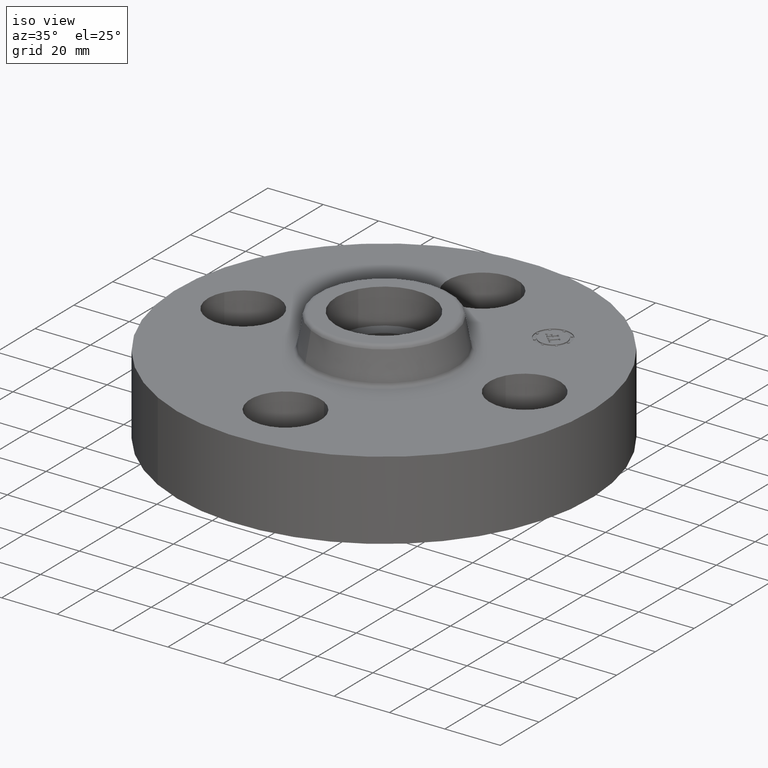
[diagram: clean part render]
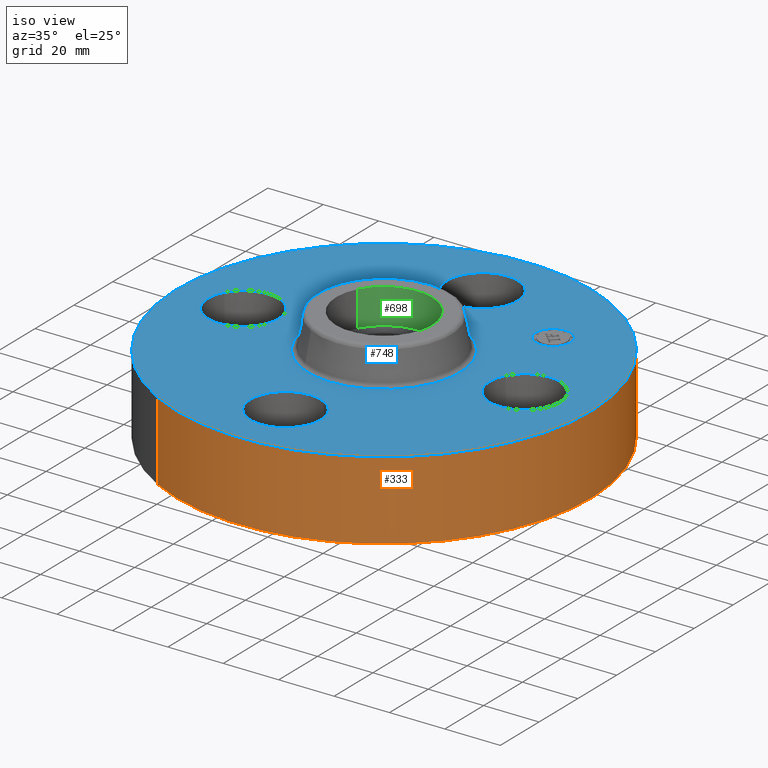
[diagram: same view with three faces highlighted in distinct colors, each labeled with its STEP entity id]
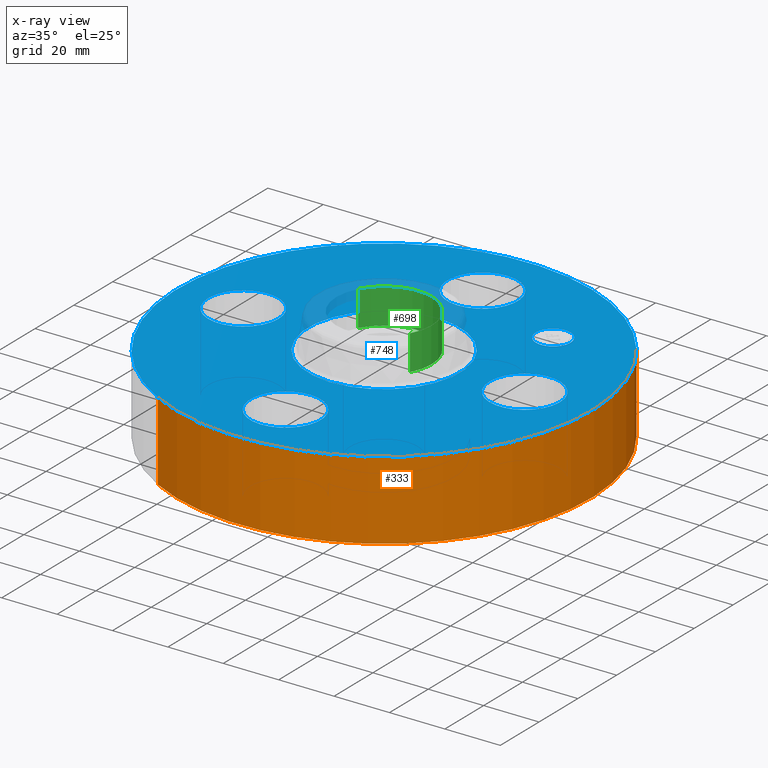
[diagram: x-ray of the same camera — body ghosted, the three highlighted faces saturated]
A machine part, iso view with three faces highlighted in distinct colors.
The next image is the same camera in x-ray (body ghosted, the three faces saturated) — at least one of them is partly hidden behind the body in this view.
Their STEP definitions:

[orange] entity #333 — the highlighted cylindrical surface (partial cylindrical patch) has radius 74.676 mm, axis along (0, 0, -1).
#207=AXIS2_PLACEMENT_3D('Circle Axis2P3D',#205,#206,$) ;
#294=AXIS2_PLACEMENT_3D('Cylinder Axis2P3D',#291,#292,#293) ;
#324=AXIS2_PLACEMENT_3D('Circle Axis2P3D',#322,#323,$) ;
#200=CARTESIAN_POINT('Vertex',(-1.4095110835,-2.58009273197,2.79741234551E-016)) ;
#202=CARTESIAN_POINT('Vertex',(1.4095110835,2.58009273197,2.79741234551E-016)) ;
#205=CARTESIAN_POINT('Axis2P3D Location',(0.,0.,0.)) ;
#291=CARTESIAN_POINT('Axis2P3D Location',(0.,0.,0.685000000003)) ;
#296=CARTESIAN_POINT('Line Origine',(-1.4095110835,-2.58009273197,0.560000000002)) ;
#300=CARTESIAN_POINT('Vertex',(-1.4095110835,-2.58009273197,1.12)) ;
#307=CARTESIAN_POINT('Vertex',(1.4095110835,2.58009273197,1.12)) ;
#310=CARTESIAN_POINT('Line Origine',(1.4095110835,2.58009273197,0.560000000002)) ;
#322=CARTESIAN_POINT('Axis2P3D Location',(0.,0.,1.12)) ;
#206=DIRECTION('Axis2P3D Direction',(0.,0.,-0.0393700787402)) ;
#292=DIRECTION('Axis2P3D Direction',(0.,0.,-0.0393700787402)) ;
#293=DIRECTION('Axis2P3D XDirection',(0.0188750212049,0.0345504945626,0.)) ;
#297=DIRECTION('Vector Direction',(0.,0.,-0.0393700787402)) ;
#311=DIRECTION('Vector Direction',(0.,0.,-0.0393700787402)) ;
#323=DIRECTION('Axis2P3D Direction',(0.,0.,-0.0393700787402)) ;
#298=VECTOR('Line Direction',#297,0.0393700787402) ;
#312=VECTOR('Line Direction',#311,0.0393700787402) ;
#328=ORIENTED_EDGE('',*,*,#209,.F.) ;
#329=ORIENTED_EDGE('',*,*,#314,.T.) ;
#330=ORIENTED_EDGE('',*,*,#326,.T.) ;
#331=ORIENTED_EDGE('',*,*,#302,.F.) ;
#333=ADVANCED_FACE('PartBody',(#332),#295,.T.) ;
#208=CIRCLE('generated circle',#207,2.94000000001) ;
#325=CIRCLE('generated circle',#324,2.94000000001) ;
#295=CYLINDRICAL_SURFACE('generated cylinder',#294,2.94000000001) ;
#209=EDGE_CURVE('',#203,#201,#208,.T.) ;
#302=EDGE_CURVE('',#201,#301,#299,.F.) ;
#314=EDGE_CURVE('',#203,#308,#313,.F.) ;
#326=EDGE_CURVE('',#308,#301,#325,.T.) ;
#327=EDGE_LOOP('',(#328,#329,#330,#331)) ;
#332=FACE_OUTER_BOUND('',#327,.T.) ;
#299=LINE('Line',#296,#298) ;
#313=LINE('Line',#310,#312) ;
#201=VERTEX_POINT('',#200) ;
#203=VERTEX_POINT('',#202) ;
#301=VERTEX_POINT('',#300) ;
#308=VERTEX_POINT('',#307) ;

[blue] entity #748 — the highlighted planar face has unit normal (0, 0, -1).
#38=AXIS2_PLACEMENT_3D('Plane Axis2P3D',#35,#36,#37) ;
#305=AXIS2_PLACEMENT_3D('Circle Axis2P3D',#303,#304,$) ;
#324=AXIS2_PLACEMENT_3D('Circle Axis2P3D',#322,#323,$) ;
#341=AXIS2_PLACEMENT_3D('Circle Axis2P3D',#339,#340,$) ;
#376=AXIS2_PLACEMENT_3D('Circle Axis2P3D',#374,#375,$) ;
#526=AXIS2_PLACEMENT_3D('Circle Axis2P3D',#524,#525,$) ;
#538=AXIS2_PLACEMENT_3D('Circle Axis2P3D',#536,#537,$) ;
#569=AXIS2_PLACEMENT_3D('Circle Axis2P3D',#567,#568,$) ;
#581=AXIS2_PLACEMENT_3D('Circle Axis2P3D',#579,#580,$) ;
#612=AXIS2_PLACEMENT_3D('Circle Axis2P3D',#610,#611,$) ;
#624=AXIS2_PLACEMENT_3D('Circle Axis2P3D',#622,#623,$) ;
#655=AXIS2_PLACEMENT_3D('Circle Axis2P3D',#653,#654,$) ;
#667=AXIS2_PLACEMENT_3D('Circle Axis2P3D',#665,#666,$) ;
#732=AXIS2_PLACEMENT_3D('Circle Axis2P3D',#730,#731,$) ;
#741=AXIS2_PLACEMENT_3D('Circle Axis2P3D',#739,#740,$) ;
#35=CARTESIAN_POINT('Axis2P3D Location',(0.,2.94000000001,1.12)) ;
#300=CARTESIAN_POINT('Vertex',(-1.4095110835,-2.58009273197,1.12)) ;
#303=CARTESIAN_POINT('Axis2P3D Location',(0.,0.,1.12)) ;
#307=CARTESIAN_POINT('Vertex',(1.4095110835,2.58009273197,1.12)) ;
#322=CARTESIAN_POINT('Axis2P3D Location',(0.,0.,1.12)) ;
#339=CARTESIAN_POINT('Axis2P3D Location',(0.,0.,1.12)) ;
#343=CARTESIAN_POINT('Vertex',(0.517945452322,0.948092790991,1.12)) ;
#345=CARTESIAN_POINT('Vertex',(-0.517945452322,-0.948092790991,1.12)) ;
#374=CARTESIAN_POINT('Axis2P3D Location',(0.,0.,1.12)) ;
#514=CARTESIAN_POINT('Vertex',(0.239712769303,2.43879128095,1.12)) ;
#521=CARTESIAN_POINT('Vertex',(-0.239712769303,1.56120871906,1.12)) ;
#524=CARTESIAN_POINT('Axis2P3D Location',(-3.67394039746E-016,2.00000000001,1.12)) ;
#536=CARTESIAN_POINT('Axis2P3D Location',(-3.67394039746E-016,2.00000000001,1.12)) ;
#557=CARTESIAN_POINT('Vertex',(-2.43879128095,0.239712769303,1.12)) ;
#564=CARTESIAN_POINT('Vertex',(-1.56120871906,-0.239712769303,1.12)) ;
#567=CARTESIAN_POINT('Axis2P3D Location',(-2.00000000001,-2.4492935983E-016,1.12)) ;
#579=CARTESIAN_POINT('Axis2P3D Location',(-2.00000000001,-2.4492935983E-016,1.12)) ;
#600=CARTESIAN_POINT('Vertex',(-0.239712769303,-2.43879128095,1.12)) ;
#607=CARTESIAN_POINT('Vertex',(0.239712769303,-1.56120871906,1.12)) ;
#610=CARTESIAN_POINT('Axis2P3D Location',(1.22464679915E-016,-2.00000000001,1.12)) ;
#622=CARTESIAN_POINT('Axis2P3D Location',(1.22464679915E-016,-2.00000000001,1.12)) ;
#643=CARTESIAN_POINT('Vertex',(1.56120871906,0.239712769303,1.12)) ;
#650=CARTESIAN_POINT('Vertex',(2.43879128095,-0.239712769303,1.12)) ;
#653=CARTESIAN_POINT('Axis2P3D Location',(2.00000000001,0.,1.12)) ;
#665=CARTESIAN_POINT('Axis2P3D Location',(2.00000000001,0.,1.12)) ;
#730=CARTESIAN_POINT('Axis2P3D Location',(1.41421356238,1.41421356238,1.12)) ;
#734=CARTESIAN_POINT('Vertex',(1.23920463403,1.58922249072,1.12)) ;
#736=CARTESIAN_POINT('Vertex',(1.58922249072,1.23920463403,1.12)) ;
#739=CARTESIAN_POINT('Axis2P3D Location',(1.41421356238,1.41421356238,1.12)) ;
#36=DIRECTION('Axis2P3D Direction',(0.,0.,-0.0393700787402)) ;
#37=DIRECTION('Axis2P3D XDirection',(0.0393700787402,0.,0.)) ;
#304=DIRECTION('Axis2P3D Direction',(0.,0.,-0.0393700787402)) ;
#323=DIRECTION('Axis2P3D Direction',(0.,0.,-0.0393700787402)) ;
#340=DIRECTION('Axis2P3D Direction',(0.,0.,-0.0393700787402)) ;
#375=DIRECTION('Axis2P3D Direction',(0.,0.,-0.0393700787402)) ;
#525=DIRECTION('Axis2P3D Direction',(0.,0.,-0.0393700787402)) ;
#537=DIRECTION('Axis2P3D Direction',(0.,0.,-0.0393700787402)) ;
#568=DIRECTION('Axis2P3D Direction',(-0.,0.,-0.0393700787402)) ;
#580=DIRECTION('Axis2P3D Direction',(-0.,0.,-0.0393700787402)) ;
#611=DIRECTION('Axis2P3D Direction',(0.,-0.,-0.0393700787402)) ;
#623=DIRECTION('Axis2P3D Direction',(0.,-0.,-0.0393700787402)) ;
#654=DIRECTION('Axis2P3D Direction',(0.,-0.,-0.0393700787402)) ;
#666=DIRECTION('Axis2P3D Direction',(0.,-0.,-0.0393700787402)) ;
#731=DIRECTION('Axis2P3D Direction',(0.,0.,-0.0393700787402)) ;
#740=DIRECTION('Axis2P3D Direction',(0.,0.,-0.0393700787402)) ;
#707=ORIENTED_EDGE('',*,*,#326,.F.) ;
#708=ORIENTED_EDGE('',*,*,#309,.F.) ;
#711=ORIENTED_EDGE('',*,*,#657,.T.) ;
#712=ORIENTED_EDGE('',*,*,#669,.T.) ;
#715=ORIENTED_EDGE('',*,*,#378,.T.) ;
#716=ORIENTED_EDGE('',*,*,#347,.T.) ;
#719=ORIENTED_EDGE('',*,*,#614,.T.) ;
#720=ORIENTED_EDGE('',*,*,#626,.T.) ;
#723=ORIENTED_EDGE('',*,*,#571,.T.) ;
#724=ORIENTED_EDGE('',*,*,#583,.T.) ;
#727=ORIENTED_EDGE('',*,*,#528,.T.) ;
#728=ORIENTED_EDGE('',*,*,#540,.T.) ;
#745=ORIENTED_EDGE('',*,*,#738,.T.) ;
#746=ORIENTED_EDGE('',*,*,#743,.T.) ;
#713=FACE_BOUND('',#710,.T.) ;
#717=FACE_BOUND('',#714,.T.) ;
#721=FACE_BOUND('',#718,.T.) ;
#725=FACE_BOUND('',#722,.T.) ;
#729=FACE_BOUND('',#726,.T.) ;
#747=FACE_BOUND('',#744,.T.) ;
#748=ADVANCED_FACE('PartBody',(#709,#713,#717,#721,#725,#729,#747),#39,.F.) ;
#306=CIRCLE('generated circle',#305,2.94000000001) ;
#325=CIRCLE('generated circle',#324,2.94000000001) ;
#342=CIRCLE('generated circle',#341,1.08034597787) ;
#377=CIRCLE('generated circle',#376,1.08034597787) ;
#527=CIRCLE('generated circle',#526,0.500000000002) ;
#539=CIRCLE('generated circle',#538,0.500000000002) ;
#570=CIRCLE('generated circle',#569,0.500000000002) ;
#582=CIRCLE('generated circle',#581,0.500000000002) ;
#613=CIRCLE('generated circle',#612,0.500000000002) ;
#625=CIRCLE('generated circle',#624,0.500000000002) ;
#656=CIRCLE('generated circle',#655,0.500000000002) ;
#668=CIRCLE('generated circle',#667,0.500000000002) ;
#733=CIRCLE('generated circle',#732,0.247500000001) ;
#742=CIRCLE('generated circle',#741,0.247500000001) ;
#309=EDGE_CURVE('',#301,#308,#306,.T.) ;
#326=EDGE_CURVE('',#308,#301,#325,.T.) ;
#347=EDGE_CURVE('',#344,#346,#342,.T.) ;
#378=EDGE_CURVE('',#346,#344,#377,.T.) ;
#528=EDGE_CURVE('',#515,#522,#527,.T.) ;
#540=EDGE_CURVE('',#522,#515,#539,.T.) ;
#571=EDGE_CURVE('',#558,#565,#570,.T.) ;
#583=EDGE_CURVE('',#565,#558,#582,.T.) ;
#614=EDGE_CURVE('',#601,#608,#613,.T.) ;
#626=EDGE_CURVE('',#608,#601,#625,.T.) ;
#657=EDGE_CURVE('',#644,#651,#656,.T.) ;
#669=EDGE_CURVE('',#651,#644,#668,.T.) ;
#738=EDGE_CURVE('',#735,#737,#733,.T.) ;
#743=EDGE_CURVE('',#737,#735,#742,.T.) ;
#706=EDGE_LOOP('',(#707,#708)) ;
#710=EDGE_LOOP('',(#711,#712)) ;
#714=EDGE_LOOP('',(#715,#716)) ;
#718=EDGE_LOOP('',(#719,#720)) ;
#722=EDGE_LOOP('',(#723,#724)) ;
#726=EDGE_LOOP('',(#727,#728)) ;
#744=EDGE_LOOP('',(#745,#746)) ;
#709=FACE_OUTER_BOUND('',#706,.T.) ;
#39=PLANE('',#38) ;
#301=VERTEX_POINT('',#300) ;
#308=VERTEX_POINT('',#307) ;
#344=VERTEX_POINT('',#343) ;
#346=VERTEX_POINT('',#345) ;
#515=VERTEX_POINT('',#514) ;
#522=VERTEX_POINT('',#521) ;
#558=VERTEX_POINT('',#557) ;
#565=VERTEX_POINT('',#564) ;
#601=VERTEX_POINT('',#600) ;
#608=VERTEX_POINT('',#607) ;
#644=VERTEX_POINT('',#643) ;
#651=VERTEX_POINT('',#650) ;
#735=VERTEX_POINT('',#734) ;
#737=VERTEX_POINT('',#736) ;

[green] entity #698 — the highlighted cylindrical surface (partial cylindrical patch) has radius 17.272 mm, axis along (0, 0, -1).
#42=AXIS2_PLACEMENT_3D('Circle Axis2P3D',#40,#41,$) ;
#488=AXIS2_PLACEMENT_3D('Circle Axis2P3D',#486,#487,$) ;
#680=AXIS2_PLACEMENT_3D('Cylinder Axis2P3D',#677,#678,#679) ;
#40=CARTESIAN_POINT('Axis2P3D Location',(1.39870617276E-016,0.,1.12)) ;
#44=CARTESIAN_POINT('Vertex',(-0.596756142088,0.326009366252,1.12)) ;
#46=CARTESIAN_POINT('Vertex',(0.596756142088,-0.326009366252,1.12)) ;
#486=CARTESIAN_POINT('Axis2P3D Location',(1.04902962957E-016,1.39870617276E-016,1.62000000001)) ;
#490=CARTESIAN_POINT('Vertex',(-0.596756142088,0.326009366252,1.62000000001)) ;
#492=CARTESIAN_POINT('Vertex',(0.596756142088,-0.326009366252,1.62000000001)) ;
#677=CARTESIAN_POINT('Axis2P3D Location',(1.39870617276E-016,1.04902962957E-016,1.61606299213)) ;
#682=CARTESIAN_POINT('Line Origine',(-0.596756142088,0.326009366252,1.37000000001)) ;
#687=CARTESIAN_POINT('Line Origine',(0.596756142088,-0.326009366252,1.37000000001)) ;
#41=DIRECTION('Axis2P3D Direction',(0.,0.,-0.0393700787402)) ;
#487=DIRECTION('Axis2P3D Direction',(0.,0.,-0.0393700787402)) ;
#678=DIRECTION('Axis2P3D Direction',(0.,0.,-0.0393700787402)) ;
#679=DIRECTION('Axis2P3D XDirection',(0.0345504945626,-0.0188750212049,0.)) ;
#683=DIRECTION('Vector Direction',(0.,0.,-0.0393700787402)) ;
#688=DIRECTION('Vector Direction',(0.,0.,-0.0393700787402)) ;
#684=VECTOR('Line Direction',#683,0.0393700787402) ;
#689=VECTOR('Line Direction',#688,0.0393700787402) ;
#693=ORIENTED_EDGE('',*,*,#494,.F.) ;
#694=ORIENTED_EDGE('',*,*,#686,.F.) ;
#695=ORIENTED_EDGE('',*,*,#48,.T.) ;
#696=ORIENTED_EDGE('',*,*,#691,.T.) ;
#698=ADVANCED_FACE('PartBody',(#697),#681,.F.) ;
#43=CIRCLE('generated circle',#42,0.680000000003) ;
#489=CIRCLE('generated circle',#488,0.680000000003) ;
#681=CYLINDRICAL_SURFACE('generated cylinder',#680,0.680000000003) ;
#48=EDGE_CURVE('',#45,#47,#43,.T.) ;
#494=EDGE_CURVE('',#491,#493,#489,.T.) ;
#686=EDGE_CURVE('',#45,#491,#685,.F.) ;
#691=EDGE_CURVE('',#47,#493,#690,.F.) ;
#692=EDGE_LOOP('',(#693,#694,#695,#696)) ;
#697=FACE_OUTER_BOUND('',#692,.T.) ;
#685=LINE('Line',#682,#684) ;
#690=LINE('Line',#687,#689) ;
#45=VERTEX_POINT('',#44) ;
#47=VERTEX_POINT('',#46) ;
#491=VERTEX_POINT('',#490) ;
#493=VERTEX_POINT('',#492) ;